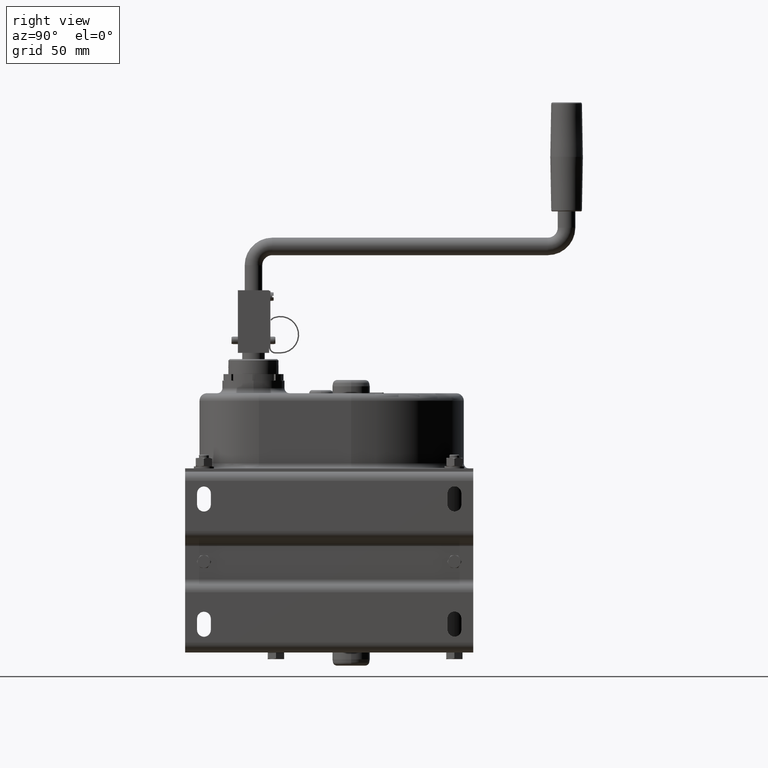
[diagram: clean part render]
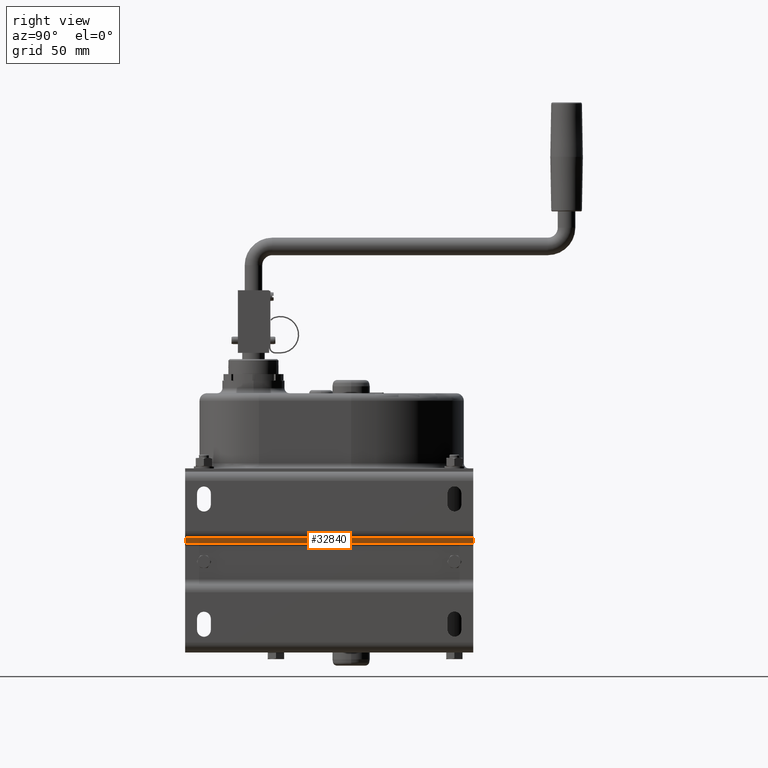
[diagram: same view with one face highlighted and labeled with its STEP entity id]
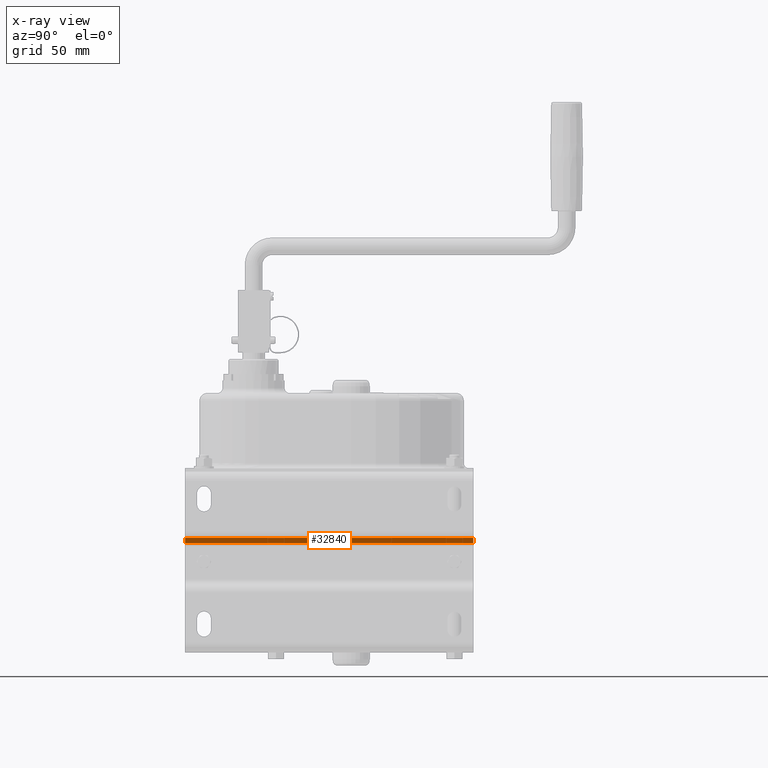
[diagram: x-ray of the same camera — body ghosted, the highlighted face saturated]
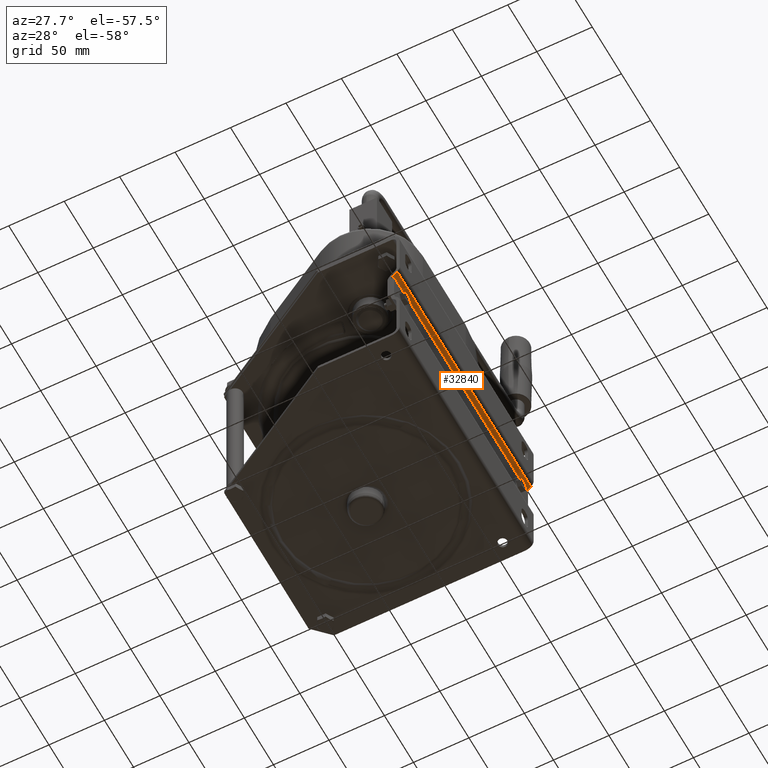
[diagram: same view with one face highlighted and labeled with its STEP entity id]
A machine part, right view. The second image highlights one B-rep face of the part: STEP entity #32840.
The next image is the same camera in x-ray: the body ghosted, the highlighted face saturated — about 0% of this face is hidden behind the body in this view.
A second angle (auxiliary view) of the same face is appended — the face is thin or edge-on in the first view.
In plain terms, the highlighted planar face has unit normal (-0.7071, 0, 0.7071).
Its self-contained STEP definition (entity closure, byte-faithful):
#32450=CARTESIAN_POINT('',(-98.7569427760575,92.5143020889382,-132.5));
#32460=DIRECTION('',(0.707106781186548,0.707106781186547,-0.));
#32470=DIRECTION('',(0.,0.,1.));
#32480=AXIS2_PLACEMENT_3D('',#32450,#32460,#32470);
#32490=PLANE('',#32480);
#32500=CARTESIAN_POINT('',(-151.242640687119,145.,-132.5));
#32510=DIRECTION('',(-0.707106781186547,0.707106781186548,
1.11022302462516E-16));
#32520=VECTOR('',#32510,1.);
#32530=LINE('',#32500,#32520);
#32540=CARTESIAN_POINT('',(-93.4644660940673,87.2218254069479,-132.5));
#32550=VERTEX_POINT('',#32540);
#32560=CARTESIAN_POINT('',(-97.6568542494924,91.4142135623731,-132.5));
#32570=VERTEX_POINT('',#32560);
#32580=EDGE_CURVE('',#32550,#32570,#32530,.T.);
#32590=ORIENTED_EDGE('',*,*,#32580,.F.);
#32600=CARTESIAN_POINT('',(-97.6568542494924,91.4142135623731,
-107.281534200716));
#32610=DIRECTION('',(0.,0.,1.));
#32620=VECTOR('',#32610,1.);
#32630=LINE('',#32600,#32620);
#32640=CARTESIAN_POINT('',(-97.6568542494924,91.4142135623731,97.5));
#32650=VERTEX_POINT('',#32640);
#32660=EDGE_CURVE('',#32570,#32650,#32630,.T.);
#32670=ORIENTED_EDGE('',*,*,#32660,.F.);
#32680=CARTESIAN_POINT('',(-151.242640687119,145.,97.5));
#32690=DIRECTION('',(0.707106781186547,-0.707106781186548,
-1.11022302462516E-16));
#32700=VECTOR('',#32690,1.);
#32710=LINE('',#32680,#32700);
#32720=CARTESIAN_POINT('',(-93.4644660940673,87.2218254069479,97.5));
#32730=VERTEX_POINT('',#32720);
#32740=EDGE_CURVE('',#32650,#32730,#32710,.T.);
#32750=ORIENTED_EDGE('',*,*,#32740,.F.);
#32760=CARTESIAN_POINT('',(-93.4644660940673,87.2218254069479,0.));
#32770=DIRECTION('',(0.,0.,-1.));
#32780=VECTOR('',#32770,1.);
#32790=LINE('',#32760,#32780);
#32800=EDGE_CURVE('',#32730,#32550,#32790,.T.);
#32810=ORIENTED_EDGE('',*,*,#32800,.F.);
#32820=EDGE_LOOP('',(#32810,#32750,#32670,#32590));
#32830=FACE_OUTER_BOUND('',#32820,.T.);
#32840=ADVANCED_FACE('',(#32830),#32490,.F.);